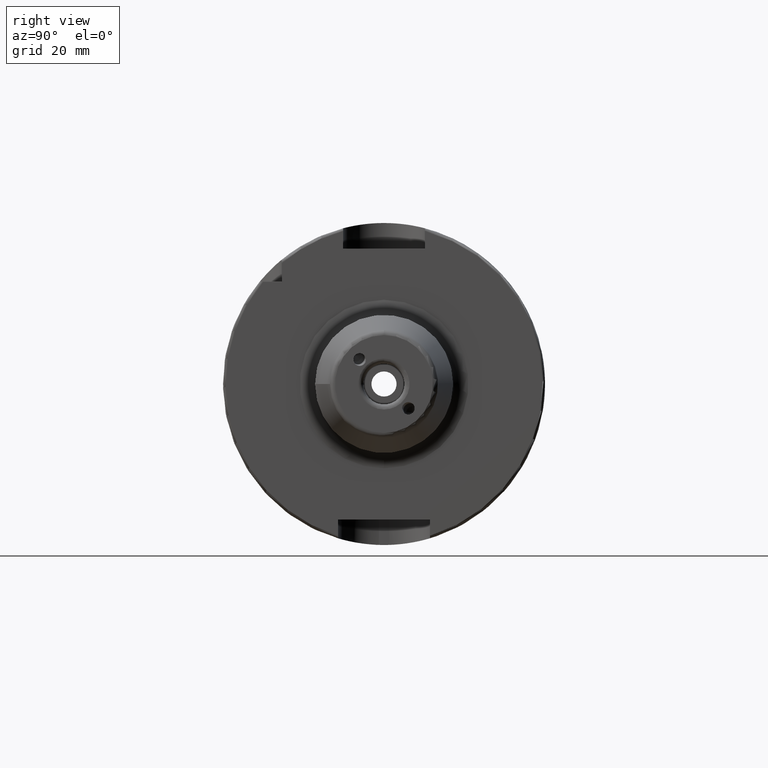
[diagram: clean part render]
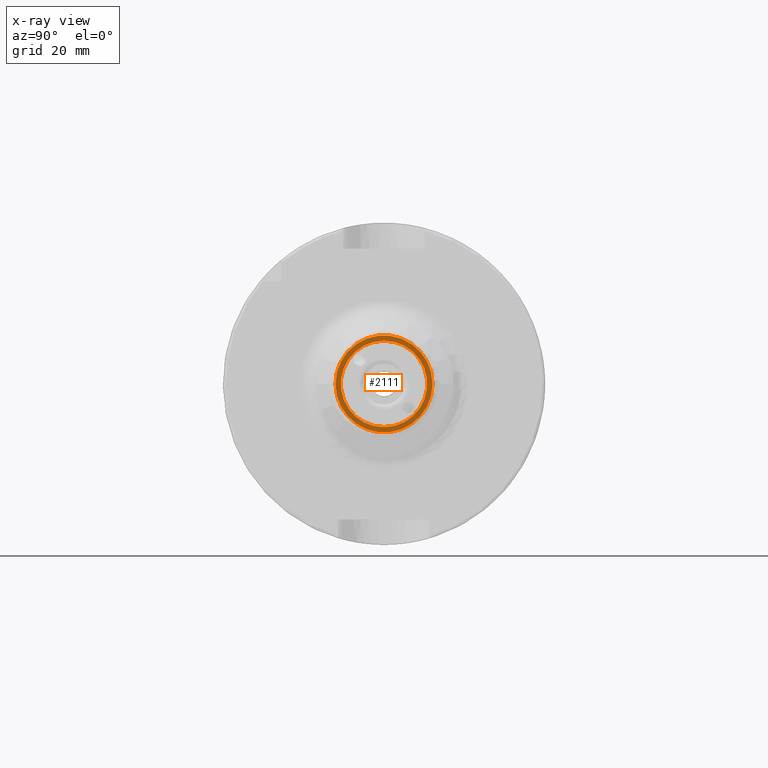
[diagram: x-ray — body ghosted, one internal face saturated and labeled with its STEP entity id]
A machine part, right view, then the same camera in x-ray: the body is ghosted and one INTERNAL B-rep face — a face not visible from any outside direction — is saturated and labeled: STEP entity #2111.
In plain terms, the highlighted planar face has unit normal (-1, 0, 0).
Its self-contained STEP definition (entity closure, byte-faithful):
#99=FACE_BOUND('',#455,.T.);
#141=PLANE('',#2376);
#323=FACE_OUTER_BOUND('',#454,.T.);
#454=EDGE_LOOP('',(#1932));
#455=EDGE_LOOP('',(#1933));
#796=CIRCLE('',#2367,8.458734);
#801=CIRCLE('',#2375,9.5);
#1008=VERTEX_POINT('',#4444);
#1012=VERTEX_POINT('',#4457);
#1317=EDGE_CURVE('',#1008,#1008,#796,.T.);
#1323=EDGE_CURVE('',#1012,#1012,#801,.T.);
#1932=ORIENTED_EDGE('',*,*,#1323,.F.);
#1933=ORIENTED_EDGE('',*,*,#1317,.T.);
#2111=ADVANCED_FACE('',(#323,#99),#141,.F.);
#2367=AXIS2_PLACEMENT_3D('',#4446,#2950,#2951);
#2375=AXIS2_PLACEMENT_3D('',#4459,#2967,#2968);
#2376=AXIS2_PLACEMENT_3D('',#4460,#2969,#2970);
#2950=DIRECTION('center_axis',(-1.,0.,0.));
#2951=DIRECTION('ref_axis',(0.,0.,1.));
#2967=DIRECTION('center_axis',(-1.,0.,0.));
#2968=DIRECTION('ref_axis',(0.,0.,1.));
#2969=DIRECTION('center_axis',(-1.,0.,0.));
#2970=DIRECTION('ref_axis',(0.,0.,1.));
#4444=CARTESIAN_POINT('',(17.,-1.03589615179389E-15,-8.458734));
#4446=CARTESIAN_POINT('Origin',(17.,0.,0.));
#4457=CARTESIAN_POINT('',(17.,-9.5,1.16341445918999E-15));
#4459=CARTESIAN_POINT('Origin',(17.,0.,0.));
#4460=CARTESIAN_POINT('Origin',(17.,7.5,0.));